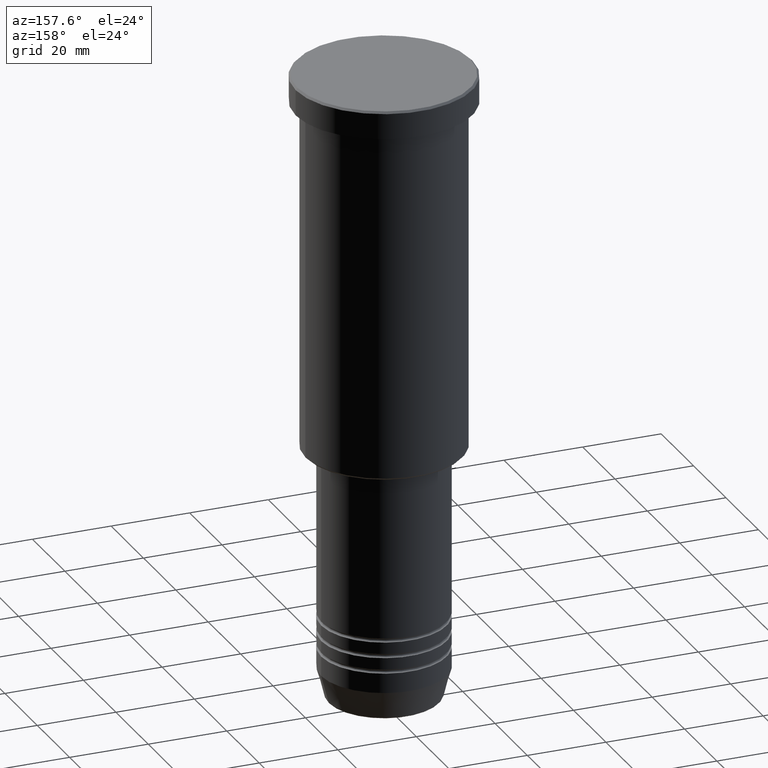
[diagram: clean part render]
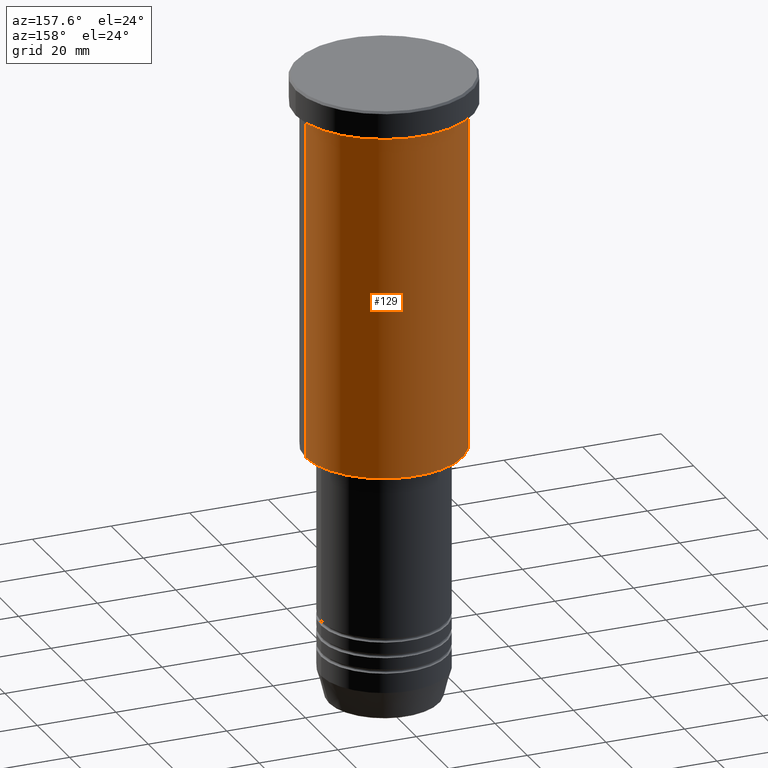
[diagram: same view with one face highlighted and labeled with its STEP entity id]
A machine part, auxiliary view. The second image highlights one B-rep face of the part: STEP entity #129.
In plain terms, the highlighted cylindrical surface (partial cylindrical patch) has radius 20 mm, axis along (-0, -0, 1).
Its self-contained STEP definition (entity closure, byte-faithful):
#58 = LINE ( 'NONE', #226, #918 ) ;
#78 = ORIENTED_EDGE ( 'NONE', *, *, #860, .F. ) ;
#81 = AXIS2_PLACEMENT_3D ( 'NONE', #1180, #178, #1175 ) ;
#85 = DIRECTION ( 'NONE',  ( -0.000000000000000000, -0.000000000000000000, 1.000000000000000000 ) ) ;
#104 = EDGE_CURVE ( 'NONE', #1168, #628, #915, .T. ) ;
#106 = DIRECTION ( 'NONE',  ( -1.000000000000000000, 0.000000000000000000, 0.000000000000000000 ) ) ;
#129 = ADVANCED_FACE ( 'NONE', ( #262 ), #923, .T. ) ;
#178 = DIRECTION ( 'NONE',  ( -0.000000000000000000, -0.000000000000000000, 1.000000000000000000 ) ) ;
#218 = CARTESIAN_POINT ( 'NONE',  ( 20.00000000000000000, 0.000000000000000000, -7.999999999999994671 ) ) ;
#226 = CARTESIAN_POINT ( 'NONE',  ( -20.00000000000000355, 2.449293598294706907E-15, 0.000000000000000000 ) ) ;
#262 = FACE_OUTER_BOUND ( 'NONE', #690, .T. ) ;
#347 = ORIENTED_EDGE ( 'NONE', *, *, #630, .F. ) ;
#364 = CARTESIAN_POINT ( 'NONE',  ( -20.00000000000000355, 2.449293598294706907E-15, -95.50000000000000000 ) ) ;
#379 = VERTEX_POINT ( 'NONE', #218 ) ;
#504 = CIRCLE ( 'NONE', #81, 20.00000000000000000 ) ;
#507 = ORIENTED_EDGE ( 'NONE', *, *, #104, .T. ) ;
#562 = VECTOR ( 'NONE', #1043, 1000.000000000000000 ) ;
#573 = AXIS2_PLACEMENT_3D ( 'NONE', #983, #912, #632 ) ;
#590 = VERTEX_POINT ( 'NONE', #1091 ) ;
#628 = VERTEX_POINT ( 'NONE', #364 ) ;
#630 = EDGE_CURVE ( 'NONE', #379, #590, #504, .T. ) ;
#632 = DIRECTION ( 'NONE',  ( 1.000000000000000000, 0.000000000000000000, 0.000000000000000000 ) ) ;
#639 = CARTESIAN_POINT ( 'NONE',  ( 0.000000000000000000, 0.000000000000000000, -95.50000000000000000 ) ) ;
#684 = CARTESIAN_POINT ( 'NONE',  ( 20.00000000000000355, 0.000000000000000000, 0.000000000000000000 ) ) ;
#690 = EDGE_LOOP ( 'NONE', ( #507, #748, #347, #78 ) ) ;
#748 = ORIENTED_EDGE ( 'NONE', *, *, #848, .T. ) ;
#848 = EDGE_CURVE ( 'NONE', #628, #590, #58, .T. ) ;
#860 = EDGE_CURVE ( 'NONE', #1168, #379, #1056, .T. ) ;
#912 = DIRECTION ( 'NONE',  ( -0.000000000000000000, -0.000000000000000000, 1.000000000000000000 ) ) ;
#915 = CIRCLE ( 'NONE', #1182, 20.00000000000000355 ) ;
#918 = VECTOR ( 'NONE', #1038, 1000.000000000000000 ) ;
#923 = CYLINDRICAL_SURFACE ( 'NONE', #573, 20.00000000000000355 ) ;
#983 = CARTESIAN_POINT ( 'NONE',  ( 0.000000000000000000, 0.000000000000000000, 0.000000000000000000 ) ) ;
#1038 = DIRECTION ( 'NONE',  ( -0.000000000000000000, -0.000000000000000000, 1.000000000000000000 ) ) ;
#1043 = DIRECTION ( 'NONE',  ( -0.000000000000000000, -0.000000000000000000, 1.000000000000000000 ) ) ;
#1056 = LINE ( 'NONE', #684, #562 ) ;
#1091 = CARTESIAN_POINT ( 'NONE',  ( -20.00000000000000000, 2.449293598294706513E-15, -7.999999999999994671 ) ) ;
#1131 = CARTESIAN_POINT ( 'NONE',  ( 20.00000000000000355, 0.000000000000000000, -95.50000000000000000 ) ) ;
#1168 = VERTEX_POINT ( 'NONE', #1131 ) ;
#1175 = DIRECTION ( 'NONE',  ( 1.000000000000000000, 0.000000000000000000, 0.000000000000000000 ) ) ;
#1180 = CARTESIAN_POINT ( 'NONE',  ( 0.000000000000000000, 0.000000000000000000, -7.999999999999994671 ) ) ;
#1182 = AXIS2_PLACEMENT_3D ( 'NONE', #639, #85, #106 ) ;